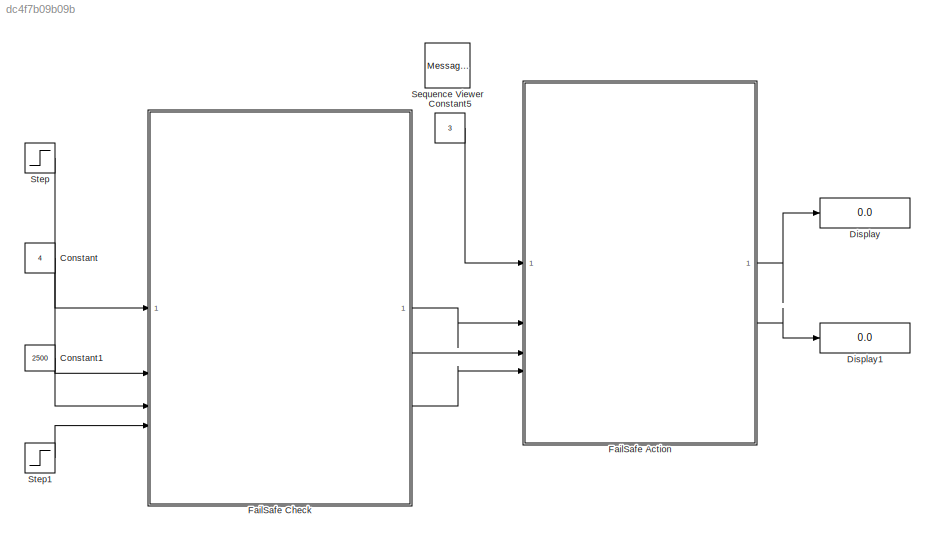
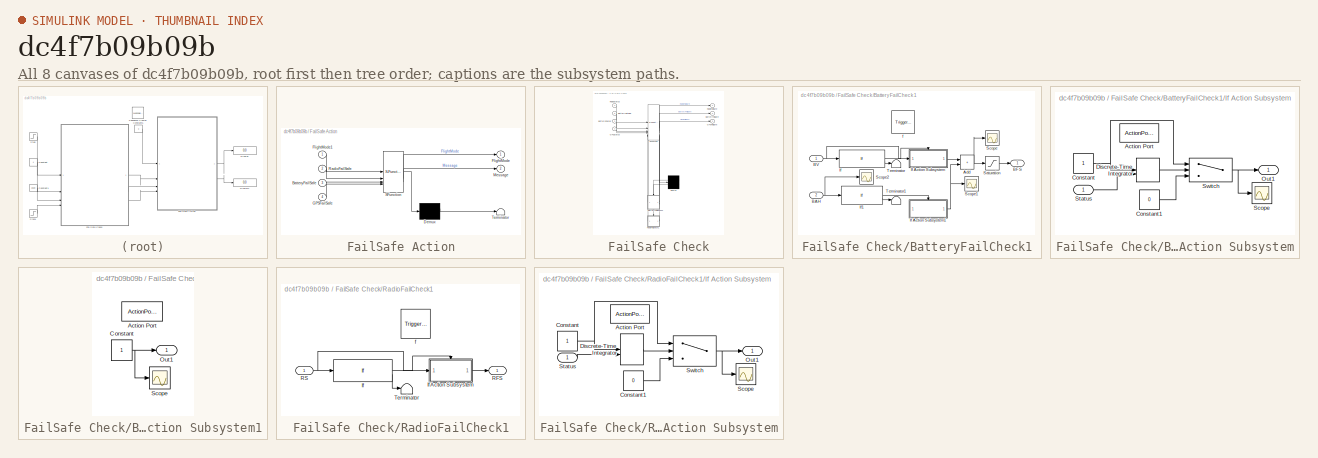
[diagram: thumbnail index - all 8 canvases of the model, root first then tree order]
MODEL slx_dc4f7b09b09b
KIND model
CONFIG AbsTol = auto
CONFIG EnableMultiTasking = off
CONFIG FixedStep = auto
CONFIG MaxStep = auto
CONFIG MinStep = auto
CONFIG RelTol = 1e-3
CONFIG SampleTimeConstraint = Unconstrained
CONFIG SolverName = VariableStepAuto
CONFIG StartTime = 0.0
CONFIG StopTime = 10.0
BLOCK [Constant] Constant
  Value = 4
BLOCK [Constant] Constant1
  Value = 2500
BLOCK [Constant] Constant5
  Value = 3
BLOCK [Display] Display
  Decimation = 1
BLOCK [Display] Display1
  Decimation = 1
BLOCK [SubSystem] FailSafe Action
  ErrorFcn = Stateflow.Translate.translate
  PermitHierarchicalResolution = ExplicitOnly
  SFBlockType = Chart
  TreatAsAtomicUnit = on
BLOCK [Demux] FailSafe Action/ Demux 
  Outputs = 1
BLOCK [S-Function] FailSafe Action/ SFunction 
  EnableBusSupport = off
  FunctionName = sf_sfun
  Parameters = BatteryChoice,EKFChoice,GCSChoice,GPSChoice,Min_H_Parach,RadioChoice
  PortCounts = [4 3]
  SFcnIsStateOwnerBlock = off
  SFunctionDeploymentMode = off
  Tag = Stateflow S-Function 1
BLOCK [Terminator] FailSafe Action/ Terminator 
BLOCK [Inport] FailSafe Action/BatteryFailSafe
  Port = 3
BLOCK [Outport] FailSafe Action/FlightMode
  VectorParamsAs1DForOutWhenUnconnected = off
BLOCK [Inport] FailSafe Action/FlightMode1
BLOCK [Inport] FailSafe Action/GPSFailSafe
  Port = 4
BLOCK [Outport] FailSafe Action/Message
  Port = 2
  VectorParamsAs1DForOutWhenUnconnected = off
BLOCK [Inport] FailSafe Action/RadioFailSafe
  Port = 2
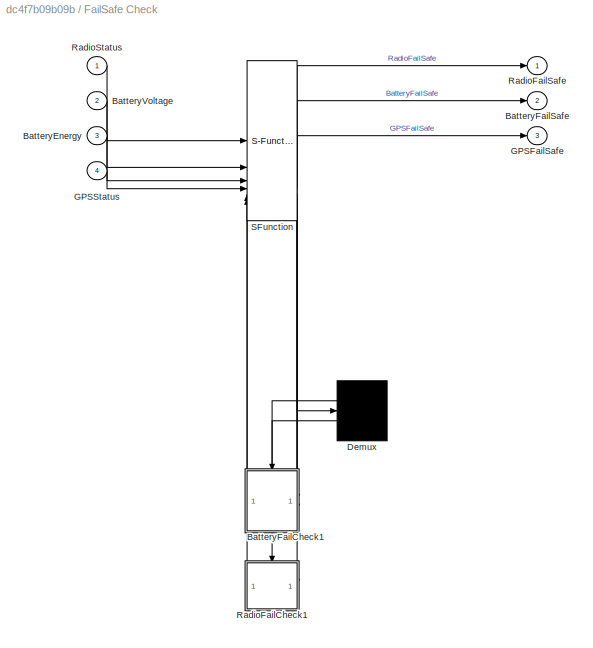
BLOCK [SubSystem] FailSafe Check
  ErrorFcn = Stateflow.Translate.translate
  PermitHierarchicalResolution = ExplicitOnly
  SFBlockType = Chart
  TreatAsAtomicUnit = on
BLOCK [Demux] FailSafe Check/ Demux 
  Outputs = 2
BLOCK [S-Function] FailSafe Check/ SFunction 
  EnableBusSupport = off
  FunctionName = sf_sfun
  Parameters = FailCapacity,FailVoltage
  PortCounts = [6 7]
  SFcnIsStateOwnerBlock = off
  SFunctionDeploymentMode = off
  Tag = Stateflow S-Function 3
BLOCK [Inport] FailSafe Check/BatteryEnergy
  Port = 3
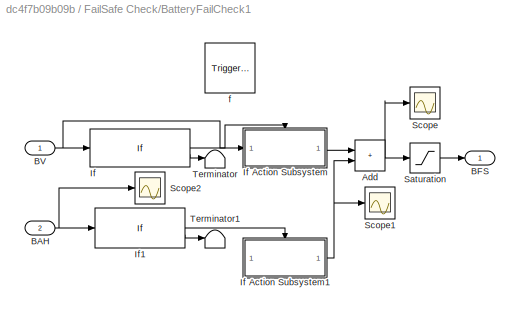
BLOCK [SubSystem] FailSafe Check/BatteryFailCheck1
  PreDeleteFcn = Stateflow.SLINSF.SimulinkMan.removePreDeleteFcn
  UndoDeleteFcn = Stateflow.SLINSF.SimulinkMan.restorePreDeleteFcn
BLOCK [Sum] FailSafe Check/BatteryFailCheck1/Add
  IconShape = rectangular
BLOCK [Inport] FailSafe Check/BatteryFailCheck1/BAH
  OutDataTypeStr = double
  Port = 2
  PortDimensions = 1
  SignalType = real
  VarSizeSig = No
BLOCK [Outport] FailSafe Check/BatteryFailCheck1/BFS
  VectorParamsAs1DForOutWhenUnconnected = off
BLOCK [Inport] FailSafe Check/BatteryFailCheck1/BV
  OutDataTypeStr = double
  PortDimensions = 1
  SignalType = real
  VarSizeSig = No
BLOCK [If] FailSafe Check/BatteryFailCheck1/If
  IfExpression = u1 <FailVoltage
BLOCK [SubSystem] FailSafe Check/BatteryFailCheck1/If Action Subsystem
  TreatAsAtomicUnit = on
BLOCK [ActionPort] FailSafe Check/BatteryFailCheck1/If Action Subsystem/Action Port
  ActionPortLabel = if { }
  InitializeStates = reset
BLOCK [Constant] FailSafe Check/BatteryFailCheck1/If Action Subsystem/Constant
BLOCK [Constant] FailSafe Check/BatteryFailCheck1/If Action Subsystem/Constant1
  Value = 0
BLOCK [DiscreteIntegrator] FailSafe Check/BatteryFailCheck1/If Action Subsystem/Discrete-Time Integrator
  ExternalReset = rising
  ICPrevOutput = DiscIntNeverNeededParam
  ICPrevScaledInput = DiscIntNeverNeededParam
  InitialConditionSetting = Auto
  SampleTime = -1
  gainval = 1
BLOCK [Outport] FailSafe Check/BatteryFailCheck1/If Action Subsystem/Out1
  VectorParamsAs1DForOutWhenUnconnected = off
BLOCK [Scope] FailSafe Check/BatteryFailCheck1/If Action Subsystem/Scope
  Floating = off
  NumInputPorts = 1
  ScopeSpecificationString = Simulink.scopes.TimeScopeBlockCfg('CurrentConfiguration', extmgr.ConfigurationSet(extmgr.Configuration('Core','General UI',true),extmgr.Configuration('Core','Source UI',true),extmgr.Configuration('Sources','WiredSimulink',true),extmgr.Configuration('Visuals','Time Domain',true,'SerializedDisplays',{struct('MinYLimReal','-0.125','MaxYLimReal','1.125','YLabelReal','','MinYLimMag','0.00000','MaxYLimM...<+1314ch>
BLOCK [Inport] FailSafe Check/BatteryFailCheck1/If Action Subsystem/Status
BLOCK [Switch] FailSafe Check/BatteryFailCheck1/If Action Subsystem/Switch
  InputSameDT = off
  SaturateOnIntegerOverflow = off
  Threshold = 10
BLOCK [SubSystem] FailSafe Check/BatteryFailCheck1/If Action Subsystem1
  TreatAsAtomicUnit = on
BLOCK [ActionPort] FailSafe Check/BatteryFailCheck1/If Action Subsystem1/Action Port
  ActionPortLabel = if { }
  InitializeStates = reset
BLOCK [Constant] FailSafe Check/BatteryFailCheck1/If Action Subsystem1/Constant
BLOCK [Outport] FailSafe Check/BatteryFailCheck1/If Action Subsystem1/Out1
  InitialOutput = [0]
  VectorParamsAs1DForOutWhenUnconnected = off
BLOCK [Scope] FailSafe Check/BatteryFailCheck1/If Action Subsystem1/Scope
  Floating = off
  NumInputPorts = 1
  ScopeSpecificationString = Simulink.scopes.TimeScopeBlockCfg('CurrentConfiguration', extmgr.ConfigurationSet(extmgr.Configuration('Core','General UI',true),extmgr.Configuration('Core','Source UI',true),extmgr.Configuration('Sources','WiredSimulink',true,'DataLoggingVariableName','ScopeData2'),extmgr.Configuration('Visuals','Time Domain',true,'SerializedDisplays',{struct('MinYLimReal','-10','MaxYLimReal','10','YLabelReal',''...<+798ch>
BLOCK [If] FailSafe Check/BatteryFailCheck1/If1
  IfExpression = u1 <FailCapacity
BLOCK [Saturate] FailSafe Check/BatteryFailCheck1/Saturation
  LowerLimit = 0
  UpperLimit = 1
BLOCK [Scope] FailSafe Check/BatteryFailCheck1/Scope
  Floating = off
  NumInputPorts = 1
  ScopeSpecificationString = Simulink.scopes.TimeScopeBlockCfg('CurrentConfiguration', extmgr.ConfigurationSet(extmgr.Configuration('Core','General UI',true),extmgr.Configuration('Core','Source UI',true),extmgr.Configuration('Sources','WiredSimulink',true,'DataLoggingVariableName','ScopeData1'),extmgr.Configuration('Visuals','Time Domain',true,'SerializedDisplays',{struct('MinYLimReal','-0.125','MaxYLimReal','1.125','YLabelRe...<+1383ch>
BLOCK [Scope] FailSafe Check/BatteryFailCheck1/Scope1
  Floating = off
  NumInputPorts = 1
  ScopeSpecificationString = Simulink.scopes.TimeScopeBlockCfg('CurrentConfiguration', extmgr.ConfigurationSet(extmgr.Configuration('Core','General UI',true),extmgr.Configuration('Core','Source UI',true),extmgr.Configuration('Sources','WiredSimulink',true,'DataLoggingVariableName','ScopeData3'),extmgr.Configuration('Visuals','Time Domain',true,'SerializedDisplays',{struct('MinYLimReal','-1.00000','MaxYLimReal','1.00000','YLab...<+1379ch>
BLOCK [Scope] FailSafe Check/BatteryFailCheck1/Scope2
  Floating = off
  NumInputPorts = 1
  ScopeSpecificationString = Simulink.scopes.TimeScopeBlockCfg('CurrentConfiguration', extmgr.ConfigurationSet(extmgr.Configuration('Core','General UI',true),extmgr.Configuration('Core','Source UI',true),extmgr.Configuration('Sources','WiredSimulink',true,'DataLoggingVariableName','ScopeData4'),extmgr.Configuration('Visuals','Time Domain',true,'SerializedDisplays',{struct('MinYLimReal','1500.00000','MaxYLimReal','3500.00000',...<+1384ch>
BLOCK [Terminator] FailSafe Check/BatteryFailCheck1/Terminator
BLOCK [Terminator] FailSafe Check/BatteryFailCheck1/Terminator1
BLOCK [TriggerPort] FailSafe Check/BatteryFailCheck1/f
  CopyFcn = Stateflow.SLINSF.SimulinkMan.removeBlockPreDeleteFcn
  PreDeleteFcn = Stateflow.SLINSF.SimulinkMan.unsafePredeleteFcn
  StatesWhenEnabling = held
  TriggerType = function-call
  VariantControl = (inherit)
BLOCK [Outport] FailSafe Check/BatteryFailSafe
  Port = 2
  VectorParamsAs1DForOutWhenUnconnected = off
BLOCK [Inport] FailSafe Check/BatteryVoltage
  Port = 2
BLOCK [Outport] FailSafe Check/GPSFailSafe
  Port = 3
  VectorParamsAs1DForOutWhenUnconnected = off
BLOCK [Inport] FailSafe Check/GPSStatus
  Port = 4
BLOCK [SubSystem] FailSafe Check/RadioFailCheck1
  PreDeleteFcn = Stateflow.SLINSF.SimulinkMan.removePreDeleteFcn
  UndoDeleteFcn = Stateflow.SLINSF.SimulinkMan.restorePreDeleteFcn
BLOCK [If] FailSafe Check/RadioFailCheck1/If
  IfExpression = u1 ==0
BLOCK [SubSystem] FailSafe Check/RadioFailCheck1/If Action Subsystem
  TreatAsAtomicUnit = on
BLOCK [ActionPort] FailSafe Check/RadioFailCheck1/If Action Subsystem/Action Port
  ActionPortLabel = if { }
  InitializeStates = reset
BLOCK [Constant] FailSafe Check/RadioFailCheck1/If Action Subsystem/Constant
BLOCK [Constant] FailSafe Check/RadioFailCheck1/If Action Subsystem/Constant1
  Value = 0
BLOCK [DiscreteIntegrator] FailSafe Check/RadioFailCheck1/If Action Subsystem/Discrete-Time Integrator
  ExternalReset = rising
  ICPrevOutput = DiscIntNeverNeededParam
  ICPrevScaledInput = DiscIntNeverNeededParam
  InitialConditionSetting = Auto
  SampleTime = -1
  gainval = 1
BLOCK [Outport] FailSafe Check/RadioFailCheck1/If Action Subsystem/Out1
  VectorParamsAs1DForOutWhenUnconnected = off
BLOCK [Scope] FailSafe Check/RadioFailCheck1/If Action Subsystem/Scope
  Floating = off
  NumInputPorts = 1
  ScopeSpecificationString = Simulink.scopes.TimeScopeBlockCfg('CurrentConfiguration', extmgr.ConfigurationSet(extmgr.Configuration('Core','General UI',true),extmgr.Configuration('Core','Source UI',true),extmgr.Configuration('Sources','WiredSimulink',true),extmgr.Configuration('Visuals','Time Domain',true,'SerializedDisplays',{struct('MinYLimReal','-1.00000','MaxYLimReal','1.00000','YLabelReal','','MinYLimMag','0.00000','MaxY...<+1326ch>
BLOCK [Inport] FailSafe Check/RadioFailCheck1/If Action Subsystem/Status
BLOCK [Switch] FailSafe Check/RadioFailCheck1/If Action Subsystem/Switch
  InputSameDT = off
  SaturateOnIntegerOverflow = off
  Threshold = 0.5
BLOCK [Outport] FailSafe Check/RadioFailCheck1/RFS
  VectorParamsAs1DForOutWhenUnconnected = off
BLOCK [Inport] FailSafe Check/RadioFailCheck1/RS
  OutDataTypeStr = double
  PortDimensions = 1
  SignalType = real
  VarSizeSig = No
BLOCK [Terminator] FailSafe Check/RadioFailCheck1/Terminator
BLOCK [TriggerPort] FailSafe Check/RadioFailCheck1/f
  CopyFcn = Stateflow.SLINSF.SimulinkMan.removeBlockPreDeleteFcn
  PreDeleteFcn = Stateflow.SLINSF.SimulinkMan.unsafePredeleteFcn
  StatesWhenEnabling = held
  TriggerType = function-call
  VariantControl = (inherit)
BLOCK [Outport] FailSafe Check/RadioFailSafe
  VectorParamsAs1DForOutWhenUnconnected = off
BLOCK [Inport] FailSafe Check/RadioStatus
BLOCK [MessageViewer] Sequence Viewer
BLOCK [Step] Step
  After = 0
  Before = 1
  SampleTime = 0
BLOCK [Step] Step1
  After = 0
  Before = 1
  SampleTime = 0
LINE Constant1:1 -> FailSafe Check:3
LINE Constant5:1 -> FailSafe Action:1
LINE Constant:1 -> FailSafe Check:2
LINE FailSafe Action:1 -> Display:1
LINE FailSafe Action:2 -> Display1:1
LINE FailSafe Check:1 -> FailSafe Action:2
LINE FailSafe Check:2 -> FailSafe Action:3
LINE FailSafe Check:3 -> FailSafe Action:4
LINE Step1:1 -> FailSafe Check:4
LINE Step:1 -> FailSafe Check:1
CHART FailSafe Action states=6 transitions=3
  STATE_LABEL 'Radio'
  STATE_LABEL 'RadioAction\nif RadioFailSafe\n    if FlightMode1 ==1\n        FlightMode=FlightMode1\n    else\n        switch RadioChoice\n            case 2\n                FlightMode=2\n            case 1\n                FlightMode=1\n            case 3\n                FlightMode=3\n        end\n    end\n    Message=1;\nend\n'
  STATE_LABEL 'RadioAction\nif RadioFailSafe\n    if FlightMode1 ==1\n        FlightMode=FlightMode1\n    else\n        switch RadioChoice\n            case 2\n                FlightMode=2\n            case 1\n                FlightMode=1\n            case 3\n                FlightMode=3\n        end\n    end\n    Message=1;\nend\n'
  STATE_LABEL 'Battery'
  STATE_LABEL 'BatteryAction\nif BatteryFailSafe\n    if FlightMode1 ==1 || FlightMode1 ==2\n        FlightMode=FlightMode1\n    else\n        switch BatteryChoice\n            case 2\n                FlightMode=2\n            case 1\n                FlightMode=1\n            case 3\n                FlightMode=0\n        end\n    end\n    Message=2;\nend\n'
  STATE_LABEL 'BatteryAction\nif BatteryFailSafe\n    if FlightMode1 ==1 || FlightMode1 ==2\n        FlightMode=FlightMode1\n    else\n        switch BatteryChoice\n            case 2\n                FlightMode=2\n            case 1\n                FlightMode=1\n            case 3\n                FlightMode=0\n        end\n    end\n    Message=2;\nend\n'
  STATE_LABEL 'GPS'
  STATE_LABEL 'GPSAction\nif GPSFailSafe\n    if FlightMode1 ==4\n        FlightMode=FlightMode1\n    else\n        switch GPSChoice\n            case 2\n                FlightMode=4\n            case 1\n                FlightMode=1\n            case 3\n                FlightMode=5\n        end\n    end\n    Message=4;\nend\n'
  STATE_LABEL 'GPSAction\nif GPSFailSafe\n    if FlightMode1 ==4\n        FlightMode=FlightMode1\n    else\n        switch GPSChoice\n            case 2\n                FlightMode=4\n            case 1\n                FlightMode=1\n            case 3\n                FlightMode=5\n        end\n    end\n    Message=4;\nend\n'
CHART FailSafe Check states=7 transitions=22
  STATE_LABEL 'FailSafeCheck'
  STATE_LABEL 'FailSafeCheck\nRadioFailSafe=RadioFailCheck(RadioStatus);\nBatteryFailSafe=BatteryFailCheck(BatteryVoltage,BatteryEnergy);\nGPSFailSafe=GPSFailCheck(GPSStatus);\n'
  STATE_LABEL 'FailSafeCheck\nRadioFailSafe=RadioFailCheck(RadioStatus);\nBatteryFailSafe=BatteryFailCheck(BatteryVoltage,BatteryEnergy);\nGPSFailSafe=GPSFailCheck(GPSStatus);\n'
  STATE_LABEL 'RFS=RadioFailCheck(RS)'
  STATE_LABEL '[RS==0]'
  STATE_LABEL '{RFS=0;}'
  STATE_LABEL '{RFS=1;}'
  STATE_LABEL 'GPSFS=GPSFailCheck(GPSS)'
  STATE_LABEL '[GPSS==0]'
  STATE_LABEL '{GPSFS=0;}'
  STATE_LABEL '{GPSFS=1;}'
  STATE_LABEL 'BFS=BatteryFailCheck(BV,BAH)'
  STATE_LABEL '[BAH<=FailCapacity&&BAH~=0]'
  STATE_LABEL '[BV<=FailVoltage]'
  STATE_LABEL '{BFS=1;}'
  STATE_LABEL '{BFS=0;}'
  STATE_LABEL '{BFS=1;}'
  STATE_LABEL 'RFS=RadioFailCheck1(RS)'
  STATE_LABEL 'BFS=BatteryFailCheck1(BV,BAH)'
CHART  states=0 transitions=0
CHART  states=0 transitions=0
